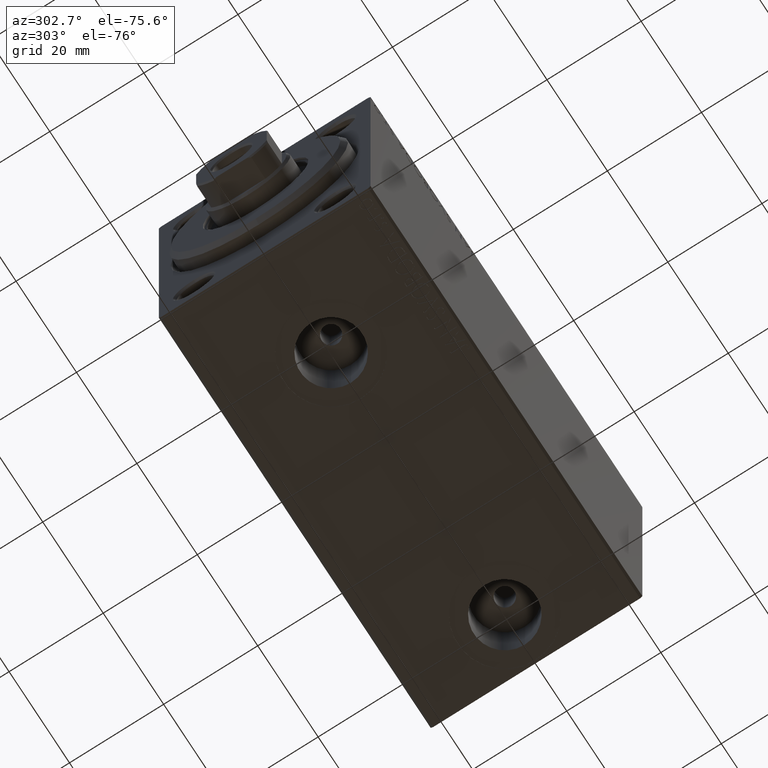
[diagram: clean part render]
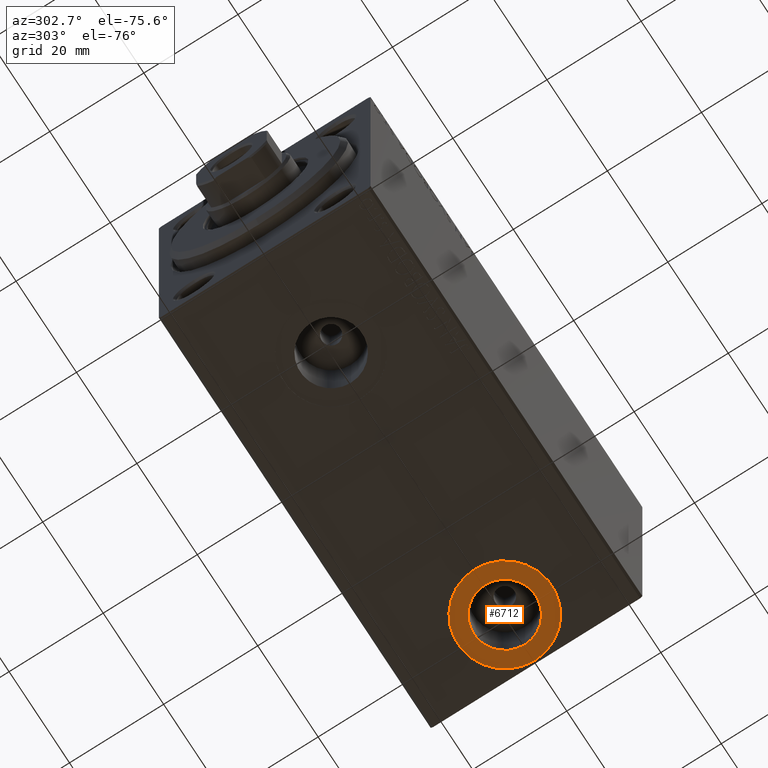
[diagram: same view with one face highlighted and labeled with its STEP entity id]
A machine part, auxiliary view. The second image highlights one B-rep face of the part: STEP entity #6712.
In plain terms, the highlighted planar face has unit normal (0, 0, -1).
Its self-contained STEP definition (entity closure, byte-faithful):
#84 = CARTESIAN_POINT ( 'NONE',  ( 79.50000000000001421, -1.012541189921931588E-14, -32.40000000000000568 ) ) ;
#770 = DIRECTION ( 'NONE',  ( 0.000000000000000000, 0.000000000000000000, -1.000000000000000000 ) ) ;
#859 = AXIS2_PLACEMENT_3D ( 'NONE', #36140, #25312, #35914 ) ;
#2272 = EDGE_LOOP ( 'NONE', ( #13192, #22500 ) ) ;
#2467 = PLANE ( 'NONE',  #21955 ) ;
#5235 = CARTESIAN_POINT ( 'NONE',  ( 79.50000000000001421, -1.012541189921931588E-14, -32.40000000000000568 ) ) ;
#6712 = ADVANCED_FACE ( 'NONE', ( #22769, #43727 ), #2467, .T. ) ;
#7818 = VERTEX_POINT ( 'NONE', #45047 ) ;
#8923 = DIRECTION ( 'NONE',  ( -1.000000000000000000, 0.000000000000000000, -0.000000000000000000 ) ) ;
#12794 = CIRCLE ( 'NONE', #15008, 9.999999999999994671 ) ;
#13192 = ORIENTED_EDGE ( 'NONE', *, *, #30991, .T. ) ;
#14128 = CIRCLE ( 'NONE', #42819, 9.999999999999994671 ) ;
#14870 = CIRCLE ( 'NONE', #859, 6.580000000000002736 ) ;
#15008 = AXIS2_PLACEMENT_3D ( 'NONE', #5235, #22095, #33137 ) ;
#18101 = DIRECTION ( 'NONE',  ( -1.000000000000000000, 0.000000000000000000, 0.000000000000000000 ) ) ;
#20634 = EDGE_CURVE ( 'NONE', #7818, #24034, #14870, .T. ) ;
#21955 = AXIS2_PLACEMENT_3D ( 'NONE', #30360, #29453, #8923 ) ;
#22095 = DIRECTION ( 'NONE',  ( 0.000000000000000000, 0.000000000000000000, -1.000000000000000000 ) ) ;
#22500 = ORIENTED_EDGE ( 'NONE', *, *, #25571, .T. ) ;
#22769 = FACE_BOUND ( 'NONE', #38704, .T. ) ;
#22843 = ORIENTED_EDGE ( 'NONE', *, *, #45004, .F. ) ;
#24034 = VERTEX_POINT ( 'NONE', #40828 ) ;
#25312 = DIRECTION ( 'NONE',  ( 0.000000000000000000, 0.000000000000000000, -1.000000000000000000 ) ) ;
#25571 = EDGE_CURVE ( 'NONE', #37295, #33911, #12794, .T. ) ;
#27604 = CARTESIAN_POINT ( 'NONE',  ( 79.50000000000001421, -1.012541189921931588E-14, -32.40000000000000568 ) ) ;
#29453 = DIRECTION ( 'NONE',  ( 0.000000000000000000, 0.000000000000000000, -1.000000000000000000 ) ) ;
#30360 = CARTESIAN_POINT ( 'NONE',  ( 79.50000000000001421, -1.012541189921931588E-14, -32.40000000000000568 ) ) ;
#30991 = EDGE_CURVE ( 'NONE', #33911, #37295, #14128, .T. ) ;
#32061 = CIRCLE ( 'NONE', #37955, 6.580000000000002736 ) ;
#33137 = DIRECTION ( 'NONE',  ( -1.000000000000000000, 0.000000000000000000, 0.000000000000000000 ) ) ;
#33837 = DIRECTION ( 'NONE',  ( -1.000000000000000000, 0.000000000000000000, 0.000000000000000000 ) ) ;
#33911 = VERTEX_POINT ( 'NONE', #41212 ) ;
#34299 = DIRECTION ( 'NONE',  ( 0.000000000000000000, 0.000000000000000000, -1.000000000000000000 ) ) ;
#35914 = DIRECTION ( 'NONE',  ( -1.000000000000000000, 0.000000000000000000, 0.000000000000000000 ) ) ;
#36140 = CARTESIAN_POINT ( 'NONE',  ( 79.50000000000001421, -1.012541189921931588E-14, -32.40000000000000568 ) ) ;
#37295 = VERTEX_POINT ( 'NONE', #38009 ) ;
#37955 = AXIS2_PLACEMENT_3D ( 'NONE', #84, #770, #18101 ) ;
#38009 = CARTESIAN_POINT ( 'NONE',  ( 89.50000000000001421, -8.900765100071964395E-15, -32.40000000000000568 ) ) ;
#38704 = EDGE_LOOP ( 'NONE', ( #22843, #41637 ) ) ;
#40828 = CARTESIAN_POINT ( 'NONE',  ( 72.92000000000001592, -1.012541189921931588E-14, -32.40000000000000568 ) ) ;
#41212 = CARTESIAN_POINT ( 'NONE',  ( 69.50000000000001421, -1.012541189921931588E-14, -32.40000000000000568 ) ) ;
#41637 = ORIENTED_EDGE ( 'NONE', *, *, #20634, .F. ) ;
#42819 = AXIS2_PLACEMENT_3D ( 'NONE', #27604, #34299, #33837 ) ;
#43727 = FACE_OUTER_BOUND ( 'NONE', #2272, .T. ) ;
#45004 = EDGE_CURVE ( 'NONE', #24034, #7818, #32061, .T. ) ;
#45047 = CARTESIAN_POINT ( 'NONE',  ( 86.08000000000001251, -9.319594305380356835E-15, -32.40000000000000568 ) ) ;